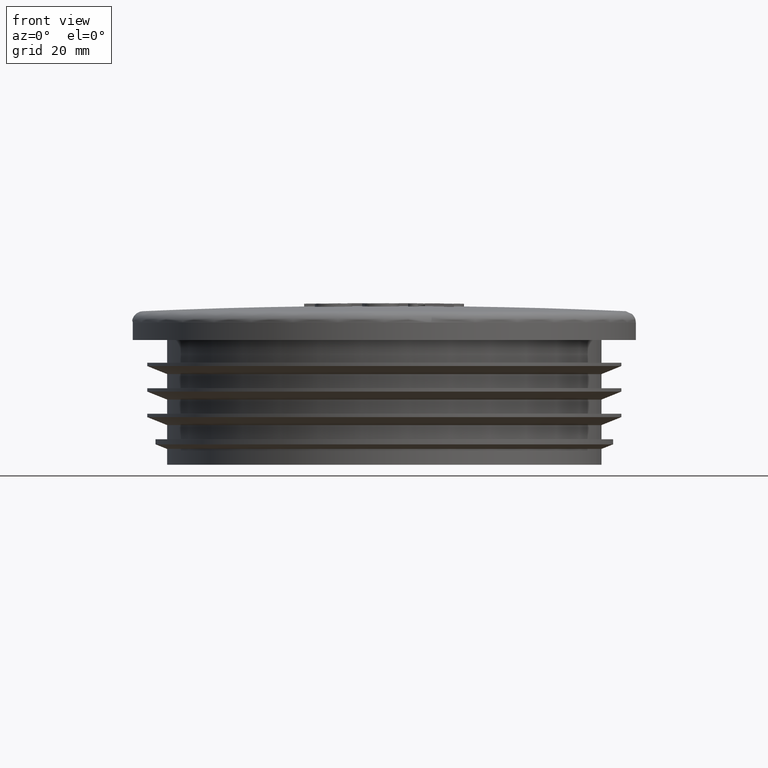
[diagram: clean part render]
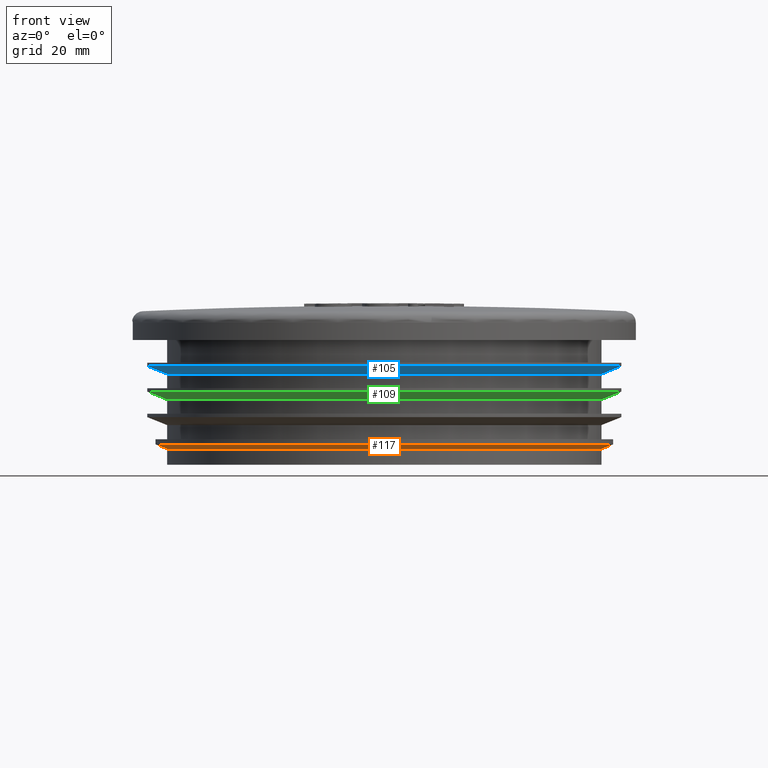
[diagram: same view with three faces highlighted in distinct colors, each labeled with its STEP entity id]
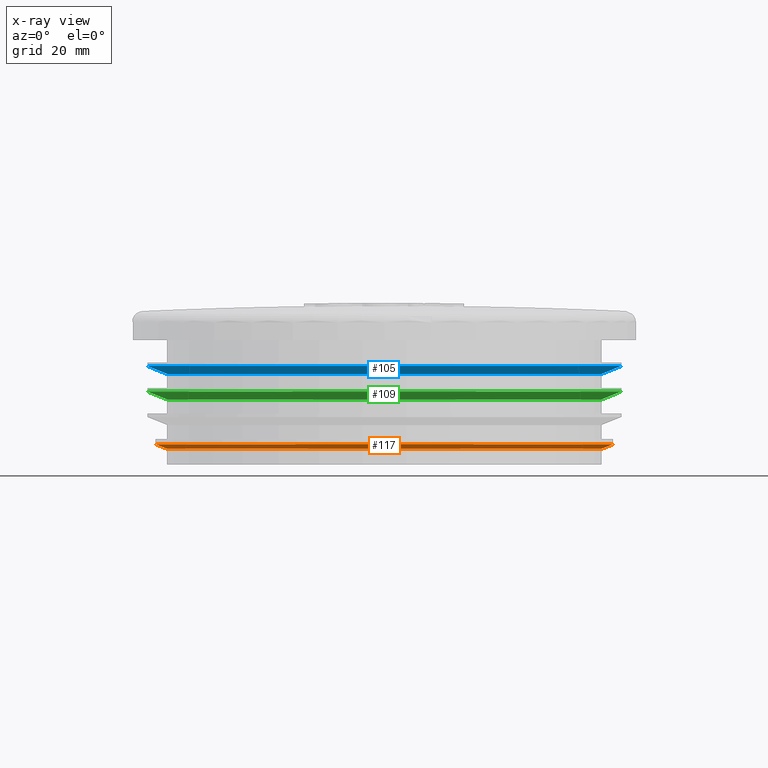
[diagram: x-ray of the same camera — body ghosted, the three highlighted faces saturated]
A machine part, front view with three faces highlighted in distinct colors.
The next image is the same camera in x-ray (body ghosted, the three faces saturated) — at least one of them is partly hidden behind the body in this view.
Their STEP definitions:

[orange] entity #117 — the highlighted conical surface has half-angle 68 deg.
#117 = ADVANCED_FACE( '', ( #278, #279 ), #280, .T. );
#278 = FACE_BOUND( '', #682, .T. );
#279 = FACE_OUTER_BOUND( '', #683, .T. );
#280 = CONICAL_SURFACE( '', #684, 40.3500000000000, 1.18682389135614 );
#682 = EDGE_LOOP( '', ( #1258 ) );
#683 = EDGE_LOOP( '', ( #1259 ) );
#684 = AXIS2_PLACEMENT_3D( '', #1260, #1261, #1262 );
#1258 = ORIENTED_EDGE( '', *, *, #1624, .F. );
#1259 = ORIENTED_EDGE( '', *, *, #1623, .T. );
#1260 = CARTESIAN_POINT( '', ( 0.000000000000000, -1.12614479134262E-015, 3.60805245167030 ) );
#1261 = DIRECTION( '', ( 0.000000000000000, 6.12303176911189E-017, 1.00000000000000 ) );
#1262 = DIRECTION( '', ( 0.000000000000000, -1.00000000000000, 6.12303176911189E-017 ) );
#1623 = EDGE_CURVE( '', #1861, #1861, #1862, .T. );
#1624 = EDGE_CURVE( '', #1863, #1863, #1864, .T. );
#1861 = VERTEX_POINT( '', #3165 );
#1862 = CIRCLE( '', #3166, 40.3500000000000 );
#1863 = VERTEX_POINT( '', #3167 );
#1864 = CIRCLE( '', #3168, 38.3500000000000 );
#3165 = CARTESIAN_POINT( '', ( 0.000000000000000, 40.3500000000000, 3.60805245167030 ) );
#3166 = AXIS2_PLACEMENT_3D( '', #3521, #3522, #3523 );
#3167 = CARTESIAN_POINT( '', ( 0.000000000000000, 38.3500000000000, 2.79999999999997 ) );
#3168 = AXIS2_PLACEMENT_3D( '', #3524, #3525, #3526 );
#3521 = CARTESIAN_POINT( '', ( 0.000000000000000, -1.12614479134262E-015, 3.60805245167030 ) );
#3522 = DIRECTION( '', ( 0.000000000000000, -6.12303176911189E-017, -1.00000000000000 ) );
#3523 = DIRECTION( '', ( 0.000000000000000, 1.00000000000000, -6.12303176911189E-017 ) );
#3524 = CARTESIAN_POINT( '', ( 0.000000000000000, -1.17562209966948E-015, 2.79999999999997 ) );
#3525 = DIRECTION( '', ( 0.000000000000000, -6.12303176911189E-017, -1.00000000000000 ) );
#3526 = DIRECTION( '', ( 0.000000000000000, 1.00000000000000, -6.12303176911189E-017 ) );

[blue] entity #105 — the highlighted conical surface has half-angle 68 deg.
#105 = ADVANCED_FACE( '', ( #242, #243 ), #244, .T. );
#242 = FACE_BOUND( '', #646, .T. );
#243 = FACE_OUTER_BOUND( '', #647, .T. );
#244 = CONICAL_SURFACE( '', #648, 41.8500000000000, 1.18682389135614 );
#646 = EDGE_LOOP( '', ( #1198 ) );
#647 = EDGE_LOOP( '', ( #1199 ) );
#648 = AXIS2_PLACEMENT_3D( '', #1200, #1201, #1202 );
#1198 = ORIENTED_EDGE( '', *, *, #1612, .F. );
#1199 = ORIENTED_EDGE( '', *, *, #1611, .T. );
#1200 = CARTESIAN_POINT( '', ( 0.000000000000000, -2.80796616574707E-016, 17.4140917904230 ) );
#1201 = DIRECTION( '', ( 0.000000000000000, 6.12303176911189E-017, 1.00000000000000 ) );
#1202 = DIRECTION( '', ( 0.000000000000000, -1.00000000000000, 6.12303176911189E-017 ) );
#1611 = EDGE_CURVE( '', #1837, #1837, #1838, .T. );
#1612 = EDGE_CURVE( '', #1839, #1839, #1840, .T. );
#1837 = VERTEX_POINT( '', #3141 );
#1838 = CIRCLE( '', #3142, 41.8500000000000 );
#1839 = VERTEX_POINT( '', #3143 );
#1840 = CIRCLE( '', #3144, 38.3500000000000 );
#3141 = CARTESIAN_POINT( '', ( 0.000000000000000, 41.8500000000000, 17.4140917904230 ) );
#3142 = AXIS2_PLACEMENT_3D( '', #3485, #3486, #3487 );
#3143 = CARTESIAN_POINT( '', ( 0.000000000000000, 38.3500000000000, 16.0000000000000 ) );
#3144 = AXIS2_PLACEMENT_3D( '', #3488, #3489, #3490 );
#3485 = CARTESIAN_POINT( '', ( 0.000000000000000, -2.80796616574707E-016, 17.4140917904230 ) );
#3486 = DIRECTION( '', ( 0.000000000000000, -6.12303176911189E-017, -1.00000000000000 ) );
#3487 = DIRECTION( '', ( 0.000000000000000, 1.00000000000000, -6.12303176911189E-017 ) );
#3488 = CARTESIAN_POINT( '', ( 0.000000000000000, -3.67381906146714E-016, 16.0000000000000 ) );
#3489 = DIRECTION( '', ( 0.000000000000000, -6.12303176911189E-017, -1.00000000000000 ) );
#3490 = DIRECTION( '', ( 0.000000000000000, 1.00000000000000, -6.12303176911189E-017 ) );

[green] entity #109 — the highlighted conical surface has half-angle 68 deg.
#109 = ADVANCED_FACE( '', ( #254, #255 ), #256, .T. );
#254 = FACE_BOUND( '', #658, .T. );
#255 = FACE_OUTER_BOUND( '', #659, .T. );
#256 = CONICAL_SURFACE( '', #660, 41.8500000000000, 1.18682389135614 );
#658 = EDGE_LOOP( '', ( #1218 ) );
#659 = EDGE_LOOP( '', ( #1219 ) );
#660 = AXIS2_PLACEMENT_3D( '', #1220, #1221, #1222 );
#1218 = ORIENTED_EDGE( '', *, *, #1616, .F. );
#1219 = ORIENTED_EDGE( '', *, *, #1615, .T. );
#1220 = CARTESIAN_POINT( '', ( 0.000000000000000, -5.56333046184741E-016, 12.9140917904231 ) );
#1221 = DIRECTION( '', ( 0.000000000000000, 6.12303176911189E-017, 1.00000000000000 ) );
#1222 = DIRECTION( '', ( 0.000000000000000, -1.00000000000000, 6.12303176911189E-017 ) );
#1615 = EDGE_CURVE( '', #1845, #1845, #1846, .T. );
#1616 = EDGE_CURVE( '', #1847, #1847, #1848, .T. );
#1845 = VERTEX_POINT( '', #3149 );
#1846 = CIRCLE( '', #3150, 41.8500000000000 );
#1847 = VERTEX_POINT( '', #3151 );
#1848 = CIRCLE( '', #3152, 38.3500000000000 );
#3149 = CARTESIAN_POINT( '', ( 0.000000000000000, 41.8500000000000, 12.9140917904231 ) );
#3150 = AXIS2_PLACEMENT_3D( '', #3497, #3498, #3499 );
#3151 = CARTESIAN_POINT( '', ( 0.000000000000000, 38.3500000000000, 11.5000000000000 ) );
#3152 = AXIS2_PLACEMENT_3D( '', #3500, #3501, #3502 );
#3497 = CARTESIAN_POINT( '', ( 0.000000000000000, -5.56333046184741E-016, 12.9140917904231 ) );
#3498 = DIRECTION( '', ( 0.000000000000000, -6.12303176911189E-017, -1.00000000000000 ) );
#3499 = DIRECTION( '', ( 0.000000000000000, 1.00000000000000, -6.12303176911189E-017 ) );
#3500 = CARTESIAN_POINT( '', ( 0.000000000000000, -6.42918335756748E-016, 11.5000000000000 ) );
#3501 = DIRECTION( '', ( 0.000000000000000, -6.12303176911189E-017, -1.00000000000000 ) );
#3502 = DIRECTION( '', ( 0.000000000000000, 1.00000000000000, -6.12303176911189E-017 ) );